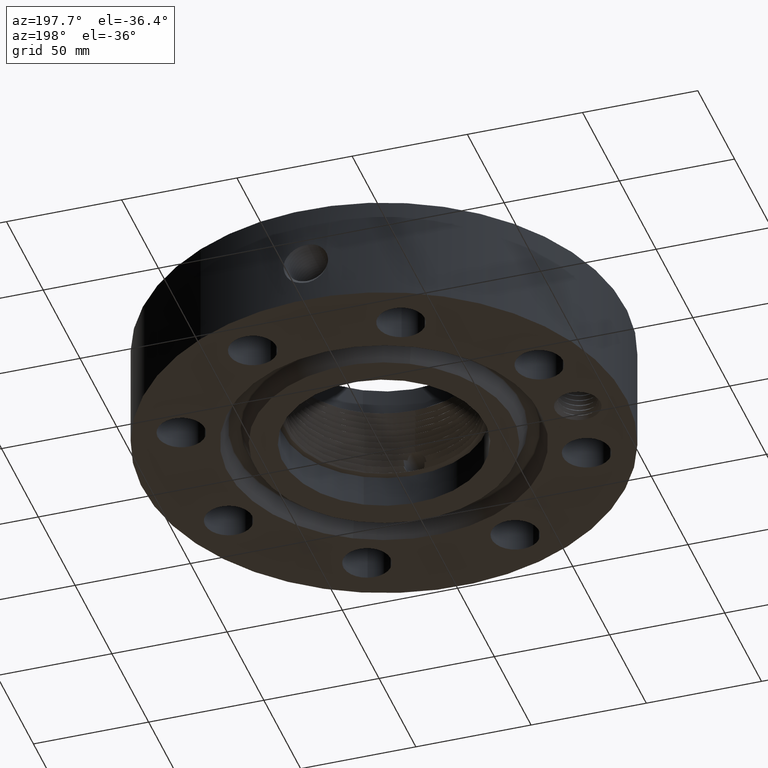
[diagram: clean part render]
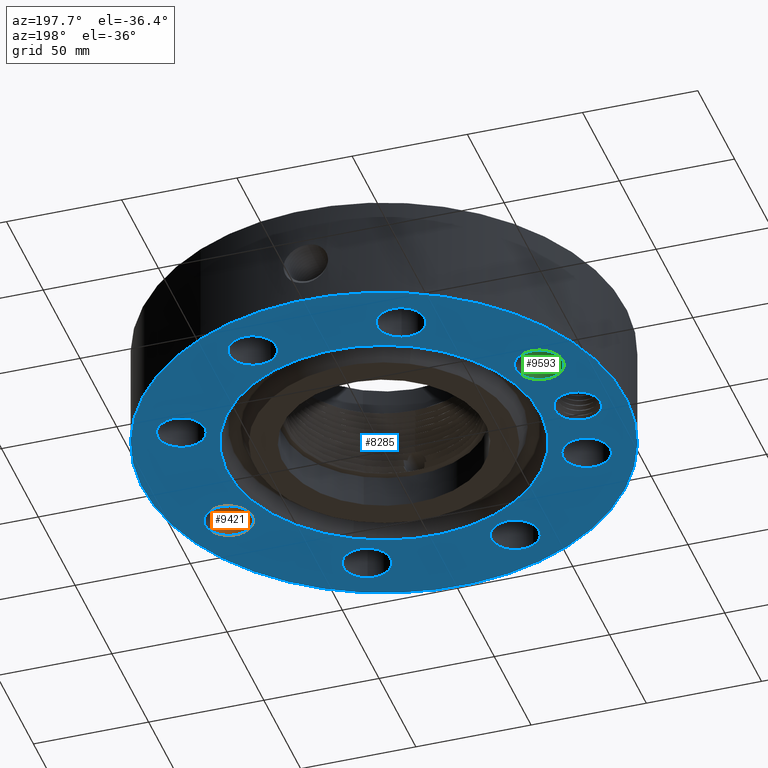
[diagram: same view with three faces highlighted in distinct colors, each labeled with its STEP entity id]
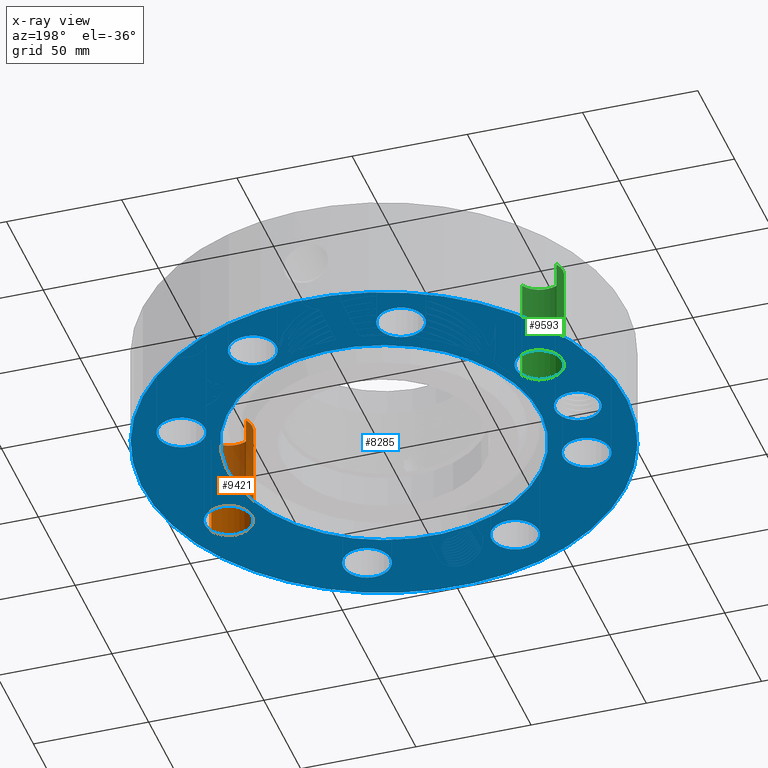
[diagram: x-ray of the same camera — body ghosted, the three highlighted faces saturated]
A machine part, auxiliary view with three faces highlighted in distinct colors.
The next image is the same camera in x-ray (body ghosted, the three faces saturated) — at least one of them is partly hidden behind the body in this view.
Their STEP definitions:

[orange] entity #9421 — the highlighted cylindrical surface (edge-blend (fillet) strip) has radius 10.287 mm, axis along (0, -0, -1).
#8139=AXIS2_PLACEMENT_3D('Circle Axis2P3D',#8137,#8138,$) ;
#9394=AXIS2_PLACEMENT_3D('Cylinder Axis2P3D',#9391,#9392,#9393) ;
#9412=AXIS2_PLACEMENT_3D('Circle Axis2P3D',#9410,#9411,$) ;
#8137=CARTESIAN_POINT('Axis2P3D Location',(3.05804125262,-1.26668216113,0.)) ;
#8141=CARTESIAN_POINT('Vertex',(3.41346219019,-1.46084950427,0.)) ;
#8143=CARTESIAN_POINT('Vertex',(2.70262031506,-1.072514818,0.)) ;
#9391=CARTESIAN_POINT('Axis2P3D Location',(3.05804125262,-1.26668216113,1.80906299213)) ;
#9396=CARTESIAN_POINT('Line Origine',(3.41346219019,-1.46084950427,0.906500000004)) ;
#9400=CARTESIAN_POINT('Vertex',(3.41346219019,-1.46084950427,1.81300000001)) ;
#9403=CARTESIAN_POINT('Line Origine',(2.70262031506,-1.072514818,0.906500000004)) ;
#9407=CARTESIAN_POINT('Vertex',(2.70262031506,-1.072514818,1.81300000001)) ;
#9410=CARTESIAN_POINT('Axis2P3D Location',(3.05804125262,-1.26668216113,1.81300000001)) ;
#8138=DIRECTION('Axis2P3D Direction',(0.,0.,-0.0393700787402)) ;
#9392=DIRECTION('Axis2P3D Direction',(0.,-0.,-0.0393700787402)) ;
#9393=DIRECTION('Axis2P3D XDirection',(-0.0345504945626,0.0188750212049,0.)) ;
#9397=DIRECTION('Vector Direction',(0.,0.,-0.0393700787402)) ;
#9404=DIRECTION('Vector Direction',(0.,0.,-0.0393700787402)) ;
#9411=DIRECTION('Axis2P3D Direction',(0.,-0.,-0.0393700787402)) ;
#9398=VECTOR('Line Direction',#9397,0.0393700787402) ;
#9405=VECTOR('Line Direction',#9404,0.0393700787402) ;
#9416=ORIENTED_EDGE('',*,*,#9402,.F.) ;
#9417=ORIENTED_EDGE('',*,*,#8145,.T.) ;
#9418=ORIENTED_EDGE('',*,*,#9409,.T.) ;
#9419=ORIENTED_EDGE('',*,*,#9414,.F.) ;
#9421=ADVANCED_FACE('PartBody',(#9420),#9395,.F.) ;
#8140=CIRCLE('generated circle',#8139,0.405000000002) ;
#9413=CIRCLE('generated circle',#9412,0.405000000002) ;
#9395=CYLINDRICAL_SURFACE('generated cylinder',#9394,0.405000000002) ;
#8145=EDGE_CURVE('',#8142,#8144,#8140,.T.) ;
#9402=EDGE_CURVE('',#8142,#9401,#9399,.F.) ;
#9409=EDGE_CURVE('',#8144,#9408,#9406,.F.) ;
#9414=EDGE_CURVE('',#9401,#9408,#9413,.T.) ;
#9415=EDGE_LOOP('',(#9416,#9417,#9418,#9419)) ;
#9420=FACE_OUTER_BOUND('',#9415,.T.) ;
#9399=LINE('Line',#9396,#9398) ;
#9406=LINE('Line',#9403,#9405) ;
#8142=VERTEX_POINT('',#8141) ;
#8144=VERTEX_POINT('',#8143) ;
#9401=VERTEX_POINT('',#9400) ;
#9408=VERTEX_POINT('',#9407) ;

[blue] entity #8285 — the highlighted planar face has unit normal (0, 0, -1).
#3651=AXIS2_PLACEMENT_3D('Plane Axis2P3D',#3648,#3649,#3650) ;
#7425=AXIS2_PLACEMENT_3D('Circle Axis2P3D',#7423,#7424,$) ;
#7451=AXIS2_PLACEMENT_3D('Circle Axis2P3D',#7449,#7450,$) ;
#8103=AXIS2_PLACEMENT_3D('Circle Axis2P3D',#8101,#8102,$) ;
#8112=AXIS2_PLACEMENT_3D('Circle Axis2P3D',#8110,#8111,$) ;
#8121=AXIS2_PLACEMENT_3D('Circle Axis2P3D',#8119,#8120,$) ;
#8130=AXIS2_PLACEMENT_3D('Circle Axis2P3D',#8128,#8129,$) ;
#8139=AXIS2_PLACEMENT_3D('Circle Axis2P3D',#8137,#8138,$) ;
#8148=AXIS2_PLACEMENT_3D('Circle Axis2P3D',#8146,#8147,$) ;
#8157=AXIS2_PLACEMENT_3D('Circle Axis2P3D',#8155,#8156,$) ;
#8166=AXIS2_PLACEMENT_3D('Circle Axis2P3D',#8164,#8165,$) ;
#8175=AXIS2_PLACEMENT_3D('Circle Axis2P3D',#8173,#8174,$) ;
#8184=AXIS2_PLACEMENT_3D('Circle Axis2P3D',#8182,#8183,$) ;
#8193=AXIS2_PLACEMENT_3D('Circle Axis2P3D',#8191,#8192,$) ;
#8202=AXIS2_PLACEMENT_3D('Circle Axis2P3D',#8200,#8201,$) ;
#8211=AXIS2_PLACEMENT_3D('Circle Axis2P3D',#8209,#8210,$) ;
#8220=AXIS2_PLACEMENT_3D('Circle Axis2P3D',#8218,#8219,$) ;
#8229=AXIS2_PLACEMENT_3D('Circle Axis2P3D',#8227,#8228,$) ;
#8238=AXIS2_PLACEMENT_3D('Circle Axis2P3D',#8236,#8237,$) ;
#8247=AXIS2_PLACEMENT_3D('Circle Axis2P3D',#8245,#8246,$) ;
#8256=AXIS2_PLACEMENT_3D('Circle Axis2P3D',#8254,#8255,$) ;
#8265=AXIS2_PLACEMENT_3D('Circle Axis2P3D',#8263,#8264,$) ;
#8274=AXIS2_PLACEMENT_3D('Circle Axis2P3D',#8272,#8273,$) ;
#3648=CARTESIAN_POINT('Axis2P3D Location',(0.,0.,0.)) ;
#7423=CARTESIAN_POINT('Axis2P3D Location',(0.,0.,0.)) ;
#7427=CARTESIAN_POINT('Vertex',(-1.28102503916,2.34490060538,-6.99353086378E-017)) ;
#7429=CARTESIAN_POINT('Vertex',(1.28102503916,-2.34490060538,-6.99353086378E-017)) ;
#7449=CARTESIAN_POINT('Axis2P3D Location',(0.,0.,0.)) ;
#8101=CARTESIAN_POINT('Axis2P3D Location',(0.,0.,0.)) ;
#8105=CARTESIAN_POINT('Vertex',(1.97763034675,3.62002806781,8.39223703654E-016)) ;
#8107=CARTESIAN_POINT('Vertex',(-1.97763034675,-3.62002806781,8.39223703654E-016)) ;
#8110=CARTESIAN_POINT('Axis2P3D Location',(0.,0.,0.)) ;
#8119=CARTESIAN_POINT('Axis2P3D Location',(-3.31000000001,7.09045175702E-017,0.)) ;
#8123=CARTESIAN_POINT('Vertex',(-2.96938826818,-0.186077037172,0.)) ;
#8125=CARTESIAN_POINT('Vertex',(-3.65061173185,0.186077037172,0.)) ;
#8128=CARTESIAN_POINT('Axis2P3D Location',(-3.31000000001,7.09045175702E-017,0.)) ;
#8137=CARTESIAN_POINT('Axis2P3D Location',(3.05804125262,-1.26668216113,0.)) ;
#8141=CARTESIAN_POINT('Vertex',(3.41346219019,-1.46084950427,0.)) ;
#8143=CARTESIAN_POINT('Vertex',(2.70262031506,-1.072514818,0.)) ;
#8146=CARTESIAN_POINT('Axis2P3D Location',(3.05804125262,-1.26668216113,0.)) ;
#8155=CARTESIAN_POINT('Axis2P3D Location',(1.26668216113,-3.05804125262,0.)) ;
#8159=CARTESIAN_POINT('Vertex',(1.15265865102,-2.66942365248,0.)) ;
#8161=CARTESIAN_POINT('Vertex',(1.38070567125,-3.44665885277,0.)) ;
#8164=CARTESIAN_POINT('Axis2P3D Location',(1.26668216113,-3.05804125262,0.)) ;
#8173=CARTESIAN_POINT('Axis2P3D Location',(-1.26668216113,-3.05804125262,0.)) ;
#8177=CARTESIAN_POINT('Vertex',(-1.072514818,-2.70262031506,0.)) ;
#8179=CARTESIAN_POINT('Vertex',(-1.46084950427,-3.41346219019,0.)) ;
#8182=CARTESIAN_POINT('Axis2P3D Location',(-1.26668216113,-3.05804125262,0.)) ;
#8191=CARTESIAN_POINT('Axis2P3D Location',(-3.05804125262,-1.26668216113,0.)) ;
#8195=CARTESIAN_POINT('Vertex',(-2.66942365248,-1.15265865102,0.)) ;
#8197=CARTESIAN_POINT('Vertex',(-3.44665885277,-1.38070567125,0.)) ;
#8200=CARTESIAN_POINT('Axis2P3D Location',(-3.05804125262,-1.26668216113,0.)) ;
#8209=CARTESIAN_POINT('Axis2P3D Location',(-3.05804125262,1.26668216113,0.)) ;
#8213=CARTESIAN_POINT('Vertex',(-2.70262031506,1.072514818,0.)) ;
#8215=CARTESIAN_POINT('Vertex',(-3.41346219019,1.46084950427,0.)) ;
#8218=CARTESIAN_POINT('Axis2P3D Location',(-3.05804125262,1.26668216113,0.)) ;
#8227=CARTESIAN_POINT('Axis2P3D Location',(-1.26668216113,3.05804125262,0.)) ;
#8231=CARTESIAN_POINT('Vertex',(-1.15265865102,2.66942365248,0.)) ;
#8233=CARTESIAN_POINT('Vertex',(-1.38070567125,3.44665885277,0.)) ;
#8236=CARTESIAN_POINT('Axis2P3D Location',(-1.26668216113,3.05804125262,0.)) ;
#8245=CARTESIAN_POINT('Axis2P3D Location',(1.26668216113,3.05804125262,0.)) ;
#8249=CARTESIAN_POINT('Vertex',(1.072514818,2.70262031506,0.)) ;
#8251=CARTESIAN_POINT('Vertex',(1.46084950427,3.41346219019,0.)) ;
#8254=CARTESIAN_POINT('Axis2P3D Location',(1.26668216113,3.05804125262,0.)) ;
#8263=CARTESIAN_POINT('Axis2P3D Location',(3.05804125262,1.26668216113,0.)) ;
#8267=CARTESIAN_POINT('Vertex',(2.66942365248,1.15265865102,0.)) ;
#8269=CARTESIAN_POINT('Vertex',(3.44665885277,1.38070567125,0.)) ;
#8272=CARTESIAN_POINT('Axis2P3D Location',(3.05804125262,1.26668216113,0.)) ;
#3649=DIRECTION('Axis2P3D Direction',(0.,0.,-0.0393700787402)) ;
#3650=DIRECTION('Axis2P3D XDirection',(0.0393700787402,0.,0.)) ;
#7424=DIRECTION('Axis2P3D Direction',(0.,0.,-0.0393700787402)) ;
#7450=DIRECTION('Axis2P3D Direction',(0.,0.,-0.0393700787402)) ;
#8102=DIRECTION('Axis2P3D Direction',(0.,0.,-0.0393700787402)) ;
#8111=DIRECTION('Axis2P3D Direction',(0.,0.,-0.0393700787402)) ;
#8120=DIRECTION('Axis2P3D Direction',(0.,0.,-0.0393700787402)) ;
#8129=DIRECTION('Axis2P3D Direction',(0.,0.,-0.0393700787402)) ;
#8138=DIRECTION('Axis2P3D Direction',(0.,0.,-0.0393700787402)) ;
#8147=DIRECTION('Axis2P3D Direction',(0.,0.,-0.0393700787402)) ;
#8156=DIRECTION('Axis2P3D Direction',(0.,0.,-0.0393700787402)) ;
#8165=DIRECTION('Axis2P3D Direction',(0.,0.,-0.0393700787402)) ;
#8174=DIRECTION('Axis2P3D Direction',(0.,0.,-0.0393700787402)) ;
#8183=DIRECTION('Axis2P3D Direction',(0.,0.,-0.0393700787402)) ;
#8192=DIRECTION('Axis2P3D Direction',(0.,0.,-0.0393700787402)) ;
#8201=DIRECTION('Axis2P3D Direction',(0.,0.,-0.0393700787402)) ;
#8210=DIRECTION('Axis2P3D Direction',(0.,0.,-0.0393700787402)) ;
#8219=DIRECTION('Axis2P3D Direction',(0.,0.,-0.0393700787402)) ;
#8228=DIRECTION('Axis2P3D Direction',(0.,0.,-0.0393700787402)) ;
#8237=DIRECTION('Axis2P3D Direction',(0.,0.,-0.0393700787402)) ;
#8246=DIRECTION('Axis2P3D Direction',(0.,0.,-0.0393700787402)) ;
#8255=DIRECTION('Axis2P3D Direction',(0.,0.,-0.0393700787402)) ;
#8264=DIRECTION('Axis2P3D Direction',(0.,0.,-0.0393700787402)) ;
#8273=DIRECTION('Axis2P3D Direction',(0.,0.,-0.0393700787402)) ;
#8116=ORIENTED_EDGE('',*,*,#8109,.T.) ;
#8117=ORIENTED_EDGE('',*,*,#8114,.T.) ;
#8134=ORIENTED_EDGE('',*,*,#8127,.F.) ;
#8135=ORIENTED_EDGE('',*,*,#8132,.F.) ;
#8152=ORIENTED_EDGE('',*,*,#8145,.F.) ;
#8153=ORIENTED_EDGE('',*,*,#8150,.F.) ;
#8170=ORIENTED_EDGE('',*,*,#8163,.F.) ;
#8171=ORIENTED_EDGE('',*,*,#8168,.F.) ;
#8188=ORIENTED_EDGE('',*,*,#8181,.F.) ;
#8189=ORIENTED_EDGE('',*,*,#8186,.F.) ;
#8206=ORIENTED_EDGE('',*,*,#8199,.F.) ;
#8207=ORIENTED_EDGE('',*,*,#8204,.F.) ;
#8224=ORIENTED_EDGE('',*,*,#8217,.F.) ;
#8225=ORIENTED_EDGE('',*,*,#8222,.F.) ;
#8242=ORIENTED_EDGE('',*,*,#8235,.F.) ;
#8243=ORIENTED_EDGE('',*,*,#8240,.F.) ;
#8260=ORIENTED_EDGE('',*,*,#8253,.F.) ;
#8261=ORIENTED_EDGE('',*,*,#8258,.F.) ;
#8278=ORIENTED_EDGE('',*,*,#8271,.F.) ;
#8279=ORIENTED_EDGE('',*,*,#8276,.F.) ;
#8282=ORIENTED_EDGE('',*,*,#7453,.F.) ;
#8283=ORIENTED_EDGE('',*,*,#7431,.F.) ;
#8136=FACE_BOUND('',#8133,.T.) ;
#8154=FACE_BOUND('',#8151,.T.) ;
#8172=FACE_BOUND('',#8169,.T.) ;
#8190=FACE_BOUND('',#8187,.T.) ;
#8208=FACE_BOUND('',#8205,.T.) ;
#8226=FACE_BOUND('',#8223,.T.) ;
#8244=FACE_BOUND('',#8241,.T.) ;
#8262=FACE_BOUND('',#8259,.T.) ;
#8280=FACE_BOUND('',#8277,.T.) ;
#8284=FACE_BOUND('',#8281,.T.) ;
#8285=ADVANCED_FACE('PartBody',(#8118,#8136,#8154,#8172,#8190,#8208,#8226,#8244,#8262,#8280,#8284),#3652,.T.) ;
#7426=CIRCLE('generated circle',#7425,2.67200000001) ;
#7452=CIRCLE('generated circle',#7451,2.67200000001) ;
#8104=CIRCLE('generated circle',#8103,4.12500000002) ;
#8113=CIRCLE('generated circle',#8112,4.12500000002) ;
#8122=CIRCLE('generated circle',#8121,0.388125000002) ;
#8131=CIRCLE('generated circle',#8130,0.388125000002) ;
#8140=CIRCLE('generated circle',#8139,0.405000000002) ;
#8149=CIRCLE('generated circle',#8148,0.405000000002) ;
#8158=CIRCLE('generated circle',#8157,0.405000000002) ;
#8167=CIRCLE('generated circle',#8166,0.405000000002) ;
#8176=CIRCLE('generated circle',#8175,0.405000000002) ;
#8185=CIRCLE('generated circle',#8184,0.405000000002) ;
#8194=CIRCLE('generated circle',#8193,0.405000000002) ;
#8203=CIRCLE('generated circle',#8202,0.405000000002) ;
#8212=CIRCLE('generated circle',#8211,0.405000000002) ;
#8221=CIRCLE('generated circle',#8220,0.405000000002) ;
#8230=CIRCLE('generated circle',#8229,0.405000000002) ;
#8239=CIRCLE('generated circle',#8238,0.405000000002) ;
#8248=CIRCLE('generated circle',#8247,0.405000000002) ;
#8257=CIRCLE('generated circle',#8256,0.405000000002) ;
#8266=CIRCLE('generated circle',#8265,0.405000000002) ;
#8275=CIRCLE('generated circle',#8274,0.405000000002) ;
#7431=EDGE_CURVE('',#7428,#7430,#7426,.T.) ;
#7453=EDGE_CURVE('',#7430,#7428,#7452,.T.) ;
#8109=EDGE_CURVE('',#8106,#8108,#8104,.T.) ;
#8114=EDGE_CURVE('',#8108,#8106,#8113,.T.) ;
#8127=EDGE_CURVE('',#8124,#8126,#8122,.T.) ;
#8132=EDGE_CURVE('',#8126,#8124,#8131,.T.) ;
#8145=EDGE_CURVE('',#8142,#8144,#8140,.T.) ;
#8150=EDGE_CURVE('',#8144,#8142,#8149,.T.) ;
#8163=EDGE_CURVE('',#8160,#8162,#8158,.T.) ;
#8168=EDGE_CURVE('',#8162,#8160,#8167,.T.) ;
#8181=EDGE_CURVE('',#8178,#8180,#8176,.T.) ;
#8186=EDGE_CURVE('',#8180,#8178,#8185,.T.) ;
#8199=EDGE_CURVE('',#8196,#8198,#8194,.T.) ;
#8204=EDGE_CURVE('',#8198,#8196,#8203,.T.) ;
#8217=EDGE_CURVE('',#8214,#8216,#8212,.T.) ;
#8222=EDGE_CURVE('',#8216,#8214,#8221,.T.) ;
#8235=EDGE_CURVE('',#8232,#8234,#8230,.T.) ;
#8240=EDGE_CURVE('',#8234,#8232,#8239,.T.) ;
#8253=EDGE_CURVE('',#8250,#8252,#8248,.T.) ;
#8258=EDGE_CURVE('',#8252,#8250,#8257,.T.) ;
#8271=EDGE_CURVE('',#8268,#8270,#8266,.T.) ;
#8276=EDGE_CURVE('',#8270,#8268,#8275,.T.) ;
#8115=EDGE_LOOP('',(#8116,#8117)) ;
#8133=EDGE_LOOP('',(#8134,#8135)) ;
#8151=EDGE_LOOP('',(#8152,#8153)) ;
#8169=EDGE_LOOP('',(#8170,#8171)) ;
#8187=EDGE_LOOP('',(#8188,#8189)) ;
#8205=EDGE_LOOP('',(#8206,#8207)) ;
#8223=EDGE_LOOP('',(#8224,#8225)) ;
#8241=EDGE_LOOP('',(#8242,#8243)) ;
#8259=EDGE_LOOP('',(#8260,#8261)) ;
#8277=EDGE_LOOP('',(#8278,#8279)) ;
#8281=EDGE_LOOP('',(#8282,#8283)) ;
#8118=FACE_OUTER_BOUND('',#8115,.T.) ;
#3652=PLANE('',#3651) ;
#7428=VERTEX_POINT('',#7427) ;
#7430=VERTEX_POINT('',#7429) ;
#8106=VERTEX_POINT('',#8105) ;
#8108=VERTEX_POINT('',#8107) ;
#8124=VERTEX_POINT('',#8123) ;
#8126=VERTEX_POINT('',#8125) ;
#8142=VERTEX_POINT('',#8141) ;
#8144=VERTEX_POINT('',#8143) ;
#8160=VERTEX_POINT('',#8159) ;
#8162=VERTEX_POINT('',#8161) ;
#8178=VERTEX_POINT('',#8177) ;
#8180=VERTEX_POINT('',#8179) ;
#8196=VERTEX_POINT('',#8195) ;
#8198=VERTEX_POINT('',#8197) ;
#8214=VERTEX_POINT('',#8213) ;
#8216=VERTEX_POINT('',#8215) ;
#8232=VERTEX_POINT('',#8231) ;
#8234=VERTEX_POINT('',#8233) ;
#8250=VERTEX_POINT('',#8249) ;
#8252=VERTEX_POINT('',#8251) ;
#8268=VERTEX_POINT('',#8267) ;
#8270=VERTEX_POINT('',#8269) ;

[green] entity #9593 — the highlighted cylindrical surface (edge-blend (fillet) strip) has radius 10.287 mm, axis along (-0, 0, -1).
#8211=AXIS2_PLACEMENT_3D('Circle Axis2P3D',#8209,#8210,$) ;
#9566=AXIS2_PLACEMENT_3D('Cylinder Axis2P3D',#9563,#9564,#9565) ;
#9584=AXIS2_PLACEMENT_3D('Circle Axis2P3D',#9582,#9583,$) ;
#8209=CARTESIAN_POINT('Axis2P3D Location',(-3.05804125262,1.26668216113,0.)) ;
#8213=CARTESIAN_POINT('Vertex',(-2.70262031506,1.072514818,0.)) ;
#8215=CARTESIAN_POINT('Vertex',(-3.41346219019,1.46084950427,0.)) ;
#9563=CARTESIAN_POINT('Axis2P3D Location',(-3.05804125262,1.26668216113,1.80906299213)) ;
#9568=CARTESIAN_POINT('Line Origine',(-2.70262031506,1.072514818,0.906500000004)) ;
#9572=CARTESIAN_POINT('Vertex',(-2.70262031506,1.072514818,1.81300000001)) ;
#9575=CARTESIAN_POINT('Line Origine',(-3.41346219019,1.46084950427,0.906500000004)) ;
#9579=CARTESIAN_POINT('Vertex',(-3.41346219019,1.46084950427,1.81300000001)) ;
#9582=CARTESIAN_POINT('Axis2P3D Location',(-3.05804125262,1.26668216113,1.81300000001)) ;
#8210=DIRECTION('Axis2P3D Direction',(0.,0.,-0.0393700787402)) ;
#9564=DIRECTION('Axis2P3D Direction',(-0.,0.,-0.0393700787402)) ;
#9565=DIRECTION('Axis2P3D XDirection',(-0.0345504945626,0.0188750212049,0.)) ;
#9569=DIRECTION('Vector Direction',(0.,0.,-0.0393700787402)) ;
#9576=DIRECTION('Vector Direction',(0.,0.,-0.0393700787402)) ;
#9583=DIRECTION('Axis2P3D Direction',(-0.,0.,-0.0393700787402)) ;
#9570=VECTOR('Line Direction',#9569,0.0393700787402) ;
#9577=VECTOR('Line Direction',#9576,0.0393700787402) ;
#9588=ORIENTED_EDGE('',*,*,#9574,.F.) ;
#9589=ORIENTED_EDGE('',*,*,#8217,.T.) ;
#9590=ORIENTED_EDGE('',*,*,#9581,.T.) ;
#9591=ORIENTED_EDGE('',*,*,#9586,.F.) ;
#9593=ADVANCED_FACE('PartBody',(#9592),#9567,.F.) ;
#8212=CIRCLE('generated circle',#8211,0.405000000002) ;
#9585=CIRCLE('generated circle',#9584,0.405000000002) ;
#9567=CYLINDRICAL_SURFACE('generated cylinder',#9566,0.405000000002) ;
#8217=EDGE_CURVE('',#8214,#8216,#8212,.T.) ;
#9574=EDGE_CURVE('',#8214,#9573,#9571,.F.) ;
#9581=EDGE_CURVE('',#8216,#9580,#9578,.F.) ;
#9586=EDGE_CURVE('',#9573,#9580,#9585,.T.) ;
#9587=EDGE_LOOP('',(#9588,#9589,#9590,#9591)) ;
#9592=FACE_OUTER_BOUND('',#9587,.T.) ;
#9571=LINE('Line',#9568,#9570) ;
#9578=LINE('Line',#9575,#9577) ;
#8214=VERTEX_POINT('',#8213) ;
#8216=VERTEX_POINT('',#8215) ;
#9573=VERTEX_POINT('',#9572) ;
#9580=VERTEX_POINT('',#9579) ;